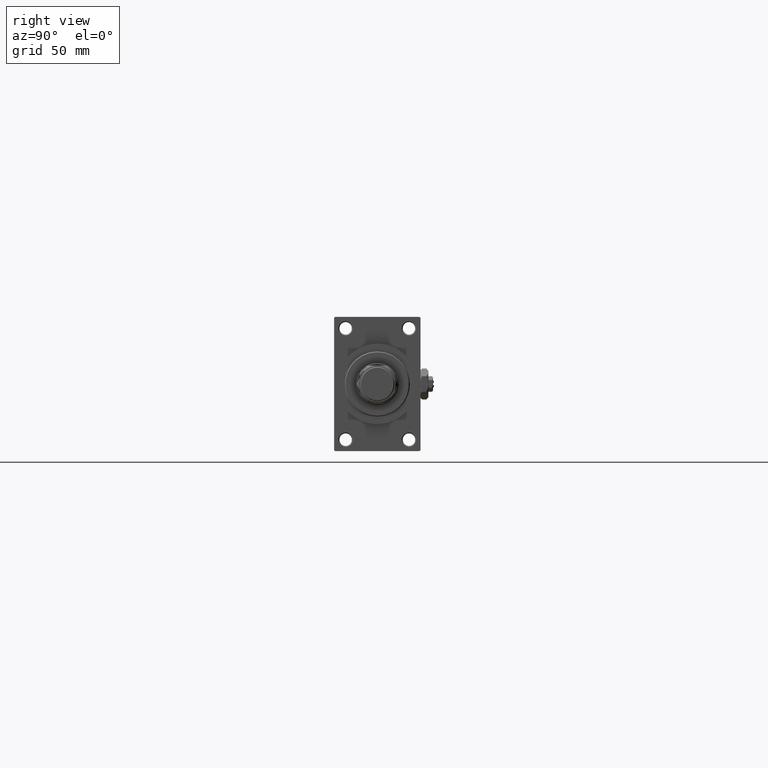
[diagram: clean part render]
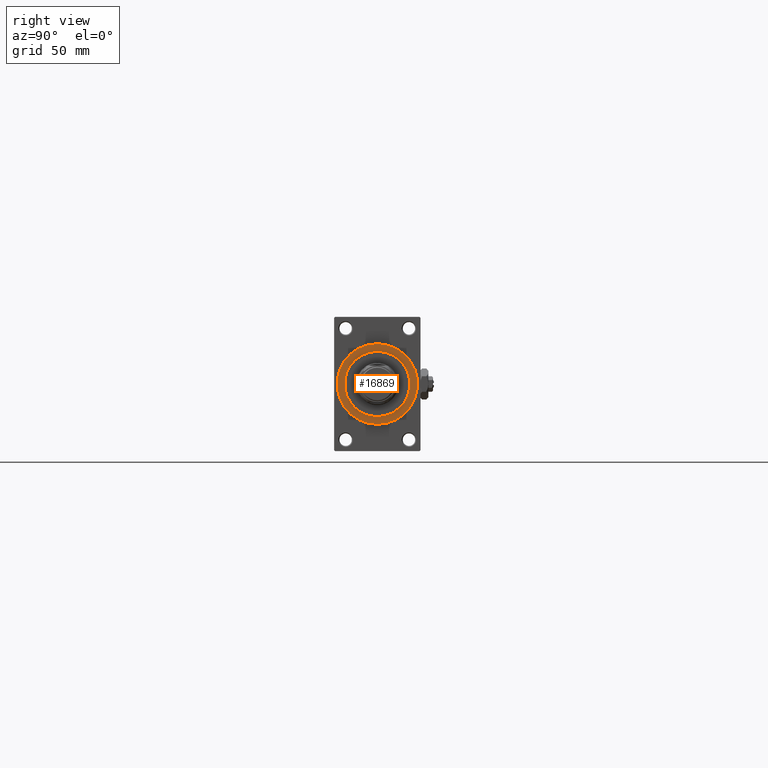
[diagram: same view with one face highlighted and labeled with its STEP entity id]
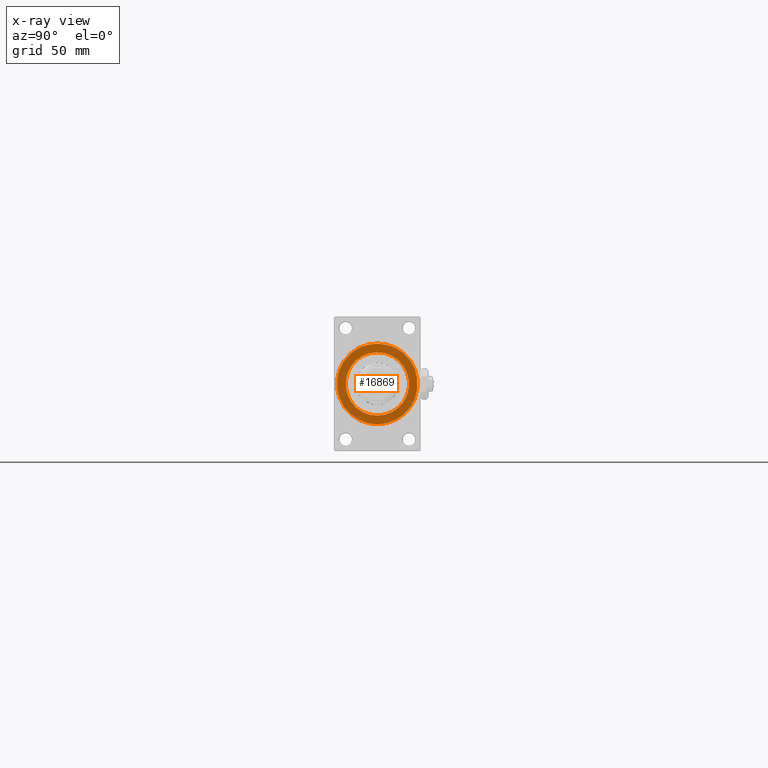
[diagram: x-ray of the same camera — body ghosted, the highlighted face saturated]
A machine part, right view. The second image highlights one B-rep face of the part: STEP entity #16869.
The next image is the same camera in x-ray: the body ghosted, the highlighted face saturated — about 0% of this face is hidden behind the body in this view.
In plain terms, the highlighted planar face has unit normal (1, 0, 0).
Its self-contained STEP definition (entity closure, byte-faithful):
#111 = CARTESIAN_POINT ( 'NONE',  ( 303.0000000000000000, 2.571758278209441661E-15, -21.00000000000000000 ) ) ;
#531 = FACE_OUTER_BOUND ( 'NONE', #15598, .T. ) ;
#1245 = VERTEX_POINT ( 'NONE', #38708 ) ;
#3273 = AXIS2_PLACEMENT_3D ( 'NONE', #21099, #48350, #36775 ) ;
#4081 = EDGE_CURVE ( 'NONE', #1245, #22112, #14759, .T. ) ;
#4876 = DIRECTION ( 'NONE',  ( 0.000000000000000000, 0.000000000000000000, -1.000000000000000000 ) ) ;
#6201 = AXIS2_PLACEMENT_3D ( 'NONE', #42389, #42125, #11535 ) ;
#8208 = DIRECTION ( 'NONE',  ( 1.000000000000000000, 0.000000000000000000, 0.000000000000000000 ) ) ;
#10541 = CIRCLE ( 'NONE', #27782, 21.00000000000000000 ) ;
#11100 = DIRECTION ( 'NONE',  ( 1.000000000000000000, 0.000000000000000000, 0.000000000000000000 ) ) ;
#11535 = DIRECTION ( 'NONE',  ( 0.000000000000000000, 0.000000000000000000, -1.000000000000000000 ) ) ;
#12748 = AXIS2_PLACEMENT_3D ( 'NONE', #38844, #11100, #15205 ) ;
#12824 = PLANE ( 'NONE',  #39820 ) ;
#12845 = ORIENTED_EDGE ( 'NONE', *, *, #13641, .F. ) ;
#13293 = EDGE_CURVE ( 'NONE', #35971, #48306, #28219, .T. ) ;
#13551 = CIRCLE ( 'NONE', #6201, 16.50000000000000000 ) ;
#13641 = EDGE_CURVE ( 'NONE', #22112, #1245, #13551, .T. ) ;
#13800 = DIRECTION ( 'NONE',  ( 1.000000000000000000, 0.000000000000000000, 0.000000000000000000 ) ) ;
#14759 = CIRCLE ( 'NONE', #3273, 16.50000000000000000 ) ;
#15205 = DIRECTION ( 'NONE',  ( 0.000000000000000000, 0.000000000000000000, -1.000000000000000000 ) ) ;
#15598 = EDGE_LOOP ( 'NONE', ( #31096, #29788 ) ) ;
#16869 = ADVANCED_FACE ( 'NONE', ( #47775, #531 ), #12824, .T. ) ;
#21099 = CARTESIAN_POINT ( 'NONE',  ( 303.0000000000000000, 0.000000000000000000, 0.000000000000000000 ) ) ;
#21508 = DIRECTION ( 'NONE',  ( 0.000000000000000000, 0.000000000000000000, -1.000000000000000000 ) ) ;
#21768 = CARTESIAN_POINT ( 'NONE',  ( 303.0000000000000000, 2.020667218593133100E-15, 16.50000000000000000 ) ) ;
#22112 = VERTEX_POINT ( 'NONE', #21768 ) ;
#24890 = CARTESIAN_POINT ( 'NONE',  ( 303.0000000000000000, 0.000000000000000000, 0.000000000000000000 ) ) ;
#26040 = EDGE_LOOP ( 'NONE', ( #50637, #12845 ) ) ;
#27456 = EDGE_CURVE ( 'NONE', #48306, #35971, #10541, .T. ) ;
#27782 = AXIS2_PLACEMENT_3D ( 'NONE', #44655, #13800, #21508 ) ;
#28219 = CIRCLE ( 'NONE', #12748, 21.00000000000000000 ) ;
#29788 = ORIENTED_EDGE ( 'NONE', *, *, #13293, .T. ) ;
#31096 = ORIENTED_EDGE ( 'NONE', *, *, #27456, .T. ) ;
#35971 = VERTEX_POINT ( 'NONE', #111 ) ;
#36775 = DIRECTION ( 'NONE',  ( 0.000000000000000000, 0.000000000000000000, -1.000000000000000000 ) ) ;
#37403 = CARTESIAN_POINT ( 'NONE',  ( 303.0000000000000000, 0.000000000000000000, 21.00000000000000000 ) ) ;
#38708 = CARTESIAN_POINT ( 'NONE',  ( 303.0000000000000000, 0.000000000000000000, -16.50000000000000000 ) ) ;
#38844 = CARTESIAN_POINT ( 'NONE',  ( 303.0000000000000000, 0.000000000000000000, 0.000000000000000000 ) ) ;
#39820 = AXIS2_PLACEMENT_3D ( 'NONE', #24890, #8208, #4876 ) ;
#42125 = DIRECTION ( 'NONE',  ( 1.000000000000000000, 0.000000000000000000, 0.000000000000000000 ) ) ;
#42389 = CARTESIAN_POINT ( 'NONE',  ( 303.0000000000000000, 0.000000000000000000, 0.000000000000000000 ) ) ;
#44655 = CARTESIAN_POINT ( 'NONE',  ( 303.0000000000000000, 0.000000000000000000, 0.000000000000000000 ) ) ;
#47775 = FACE_BOUND ( 'NONE', #26040, .T. ) ;
#48306 = VERTEX_POINT ( 'NONE', #37403 ) ;
#48350 = DIRECTION ( 'NONE',  ( 1.000000000000000000, 0.000000000000000000, 0.000000000000000000 ) ) ;
#50637 = ORIENTED_EDGE ( 'NONE', *, *, #4081, .F. ) ;